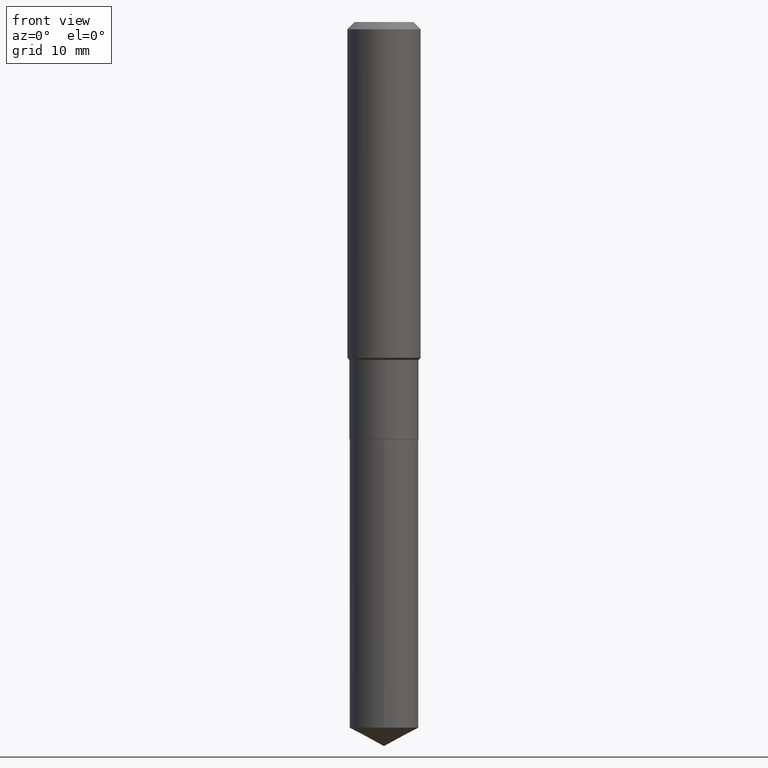
[diagram: clean part render]
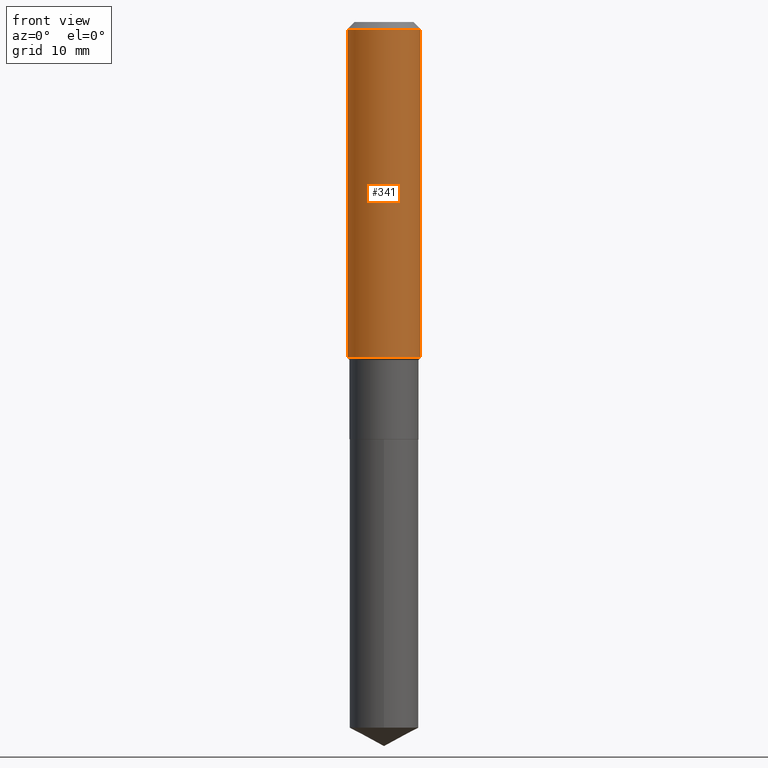
[diagram: same view with one face highlighted and labeled with its STEP entity id]
A machine part, front view. The second image highlights one B-rep face of the part: STEP entity #341.
In plain terms, the highlighted cylindrical surface (partial cylindrical patch) has radius 4.0005 mm, axis along (-0, 0, 1).
Its self-contained STEP definition (entity closure, byte-faithful):
#2 = CARTESIAN_POINT ( 'NONE',  ( -0.1575000000000000844, 1.119104808822158392E-15, -7.747322767151481189E-30 ) ) ;
#12 = DIRECTION ( 'NONE',  ( -2.445468806185136877E-29, 3.491481338843145188E-15, 1.000000000000000000 ) ) ;
#22 = DIRECTION ( 'NONE',  ( 1.000000000000000000, -6.982962677686265922E-15, 0.000000000000000000 ) ) ;
#48 = CARTESIAN_POINT ( 'NONE',  ( -0.1575000000000000011, -1.453680502737883861E-15, -0.03150000000000019451 ) ) ;
#51 = CARTESIAN_POINT ( 'NONE',  ( 0.1575000000000000844, -1.099816621735587677E-15, 7.679978421878603638E-30 ) ) ;
#110 = EDGE_LOOP ( 'NONE', ( #311, #147, #339, #249 ) ) ;
#114 = DIRECTION ( 'NONE',  ( -2.445468806185136597E-29, 3.491481338843145583E-15, 1.000000000000000000 ) ) ;
#118 = CIRCLE ( 'NONE', #456, 0.1575000000000000011 ) ;
#128 = DIRECTION ( 'NONE',  ( -2.445468806185136597E-29, 3.491481338843145583E-15, 1.000000000000000000 ) ) ;
#147 = ORIENTED_EDGE ( 'NONE', *, *, #202, .T. ) ;
#148 = LINE ( 'NONE', #2, #387 ) ;
#151 = DIRECTION ( 'NONE',  ( -2.445468806185136597E-29, 3.491481338843145583E-15, 1.000000000000000000 ) ) ;
#183 = EDGE_CURVE ( 'NONE', #297, #476, #391, .T. ) ;
#202 = EDGE_CURVE ( 'NONE', #385, #297, #373, .T. ) ;
#215 = AXIS2_PLACEMENT_3D ( 'NONE', #270, #151, #348 ) ;
#225 = DIRECTION ( 'NONE',  ( -2.445468806185136877E-29, 3.491481338843145188E-15, 1.000000000000000000 ) ) ;
#249 = ORIENTED_EDGE ( 'NONE', *, *, #295, .F. ) ;
#250 = CARTESIAN_POINT ( 'NONE',  ( 7.703226739483228723E-31, -1.099816621735597661E-16, -0.03150000000000019451 ) ) ;
#270 = CARTESIAN_POINT ( 'NONE',  ( 3.526977385720512669E-29, -5.035588960946525443E-15, -1.442249999999999588 ) ) ;
#282 = CYLINDRICAL_SURFACE ( 'NONE', #303, 0.1575000000000000844 ) ;
#295 = EDGE_CURVE ( 'NONE', #486, #476, #118, .T. ) ;
#297 = VERTEX_POINT ( 'NONE', #487 ) ;
#303 = AXIS2_PLACEMENT_3D ( 'NONE', #445, #114, #327 ) ;
#311 = ORIENTED_EDGE ( 'NONE', *, *, #405, .F. ) ;
#327 = DIRECTION ( 'NONE',  ( 1.000000000000000000, -6.982962677686267499E-15, 4.876176775795936353E-29 ) ) ;
#339 = ORIENTED_EDGE ( 'NONE', *, *, #183, .T. ) ;
#341 = ADVANCED_FACE ( 'NONE', ( #403 ), #282, .T. ) ;
#348 = DIRECTION ( 'NONE',  ( 1.000000000000000000, -6.982962677686267499E-15, 0.000000000000000000 ) ) ;
#363 = VECTOR ( 'NONE', #225, 39.37007874015748143 ) ;
#371 = CARTESIAN_POINT ( 'NONE',  ( -0.1575000000000001676, -3.916484152124366261E-15, -1.442249999999999588 ) ) ;
#373 = CIRCLE ( 'NONE', #215, 0.1575000000000001676 ) ;
#385 = VERTEX_POINT ( 'NONE', #371 ) ;
#387 = VECTOR ( 'NONE', #12, 39.37007874015748143 ) ;
#391 = LINE ( 'NONE', #51, #363 ) ;
#403 = FACE_OUTER_BOUND ( 'NONE', #110, .T. ) ;
#405 = EDGE_CURVE ( 'NONE', #385, #486, #148, .T. ) ;
#429 = CARTESIAN_POINT ( 'NONE',  ( 0.1575000000000000011, -1.209798283909146741E-15, -0.03150000000000019451 ) ) ;
#445 = CARTESIAN_POINT ( 'NONE',  ( 0.000000000000000000, 0.000000000000000000, 0.000000000000000000 ) ) ;
#456 = AXIS2_PLACEMENT_3D ( 'NONE', #250, #128, #22 ) ;
#476 = VERTEX_POINT ( 'NONE', #429 ) ;
#486 = VERTEX_POINT ( 'NONE', #48 ) ;
#487 = CARTESIAN_POINT ( 'NONE',  ( 0.1575000000000001676, -6.135405582682112923E-15, -1.442249999999999588 ) ) ;